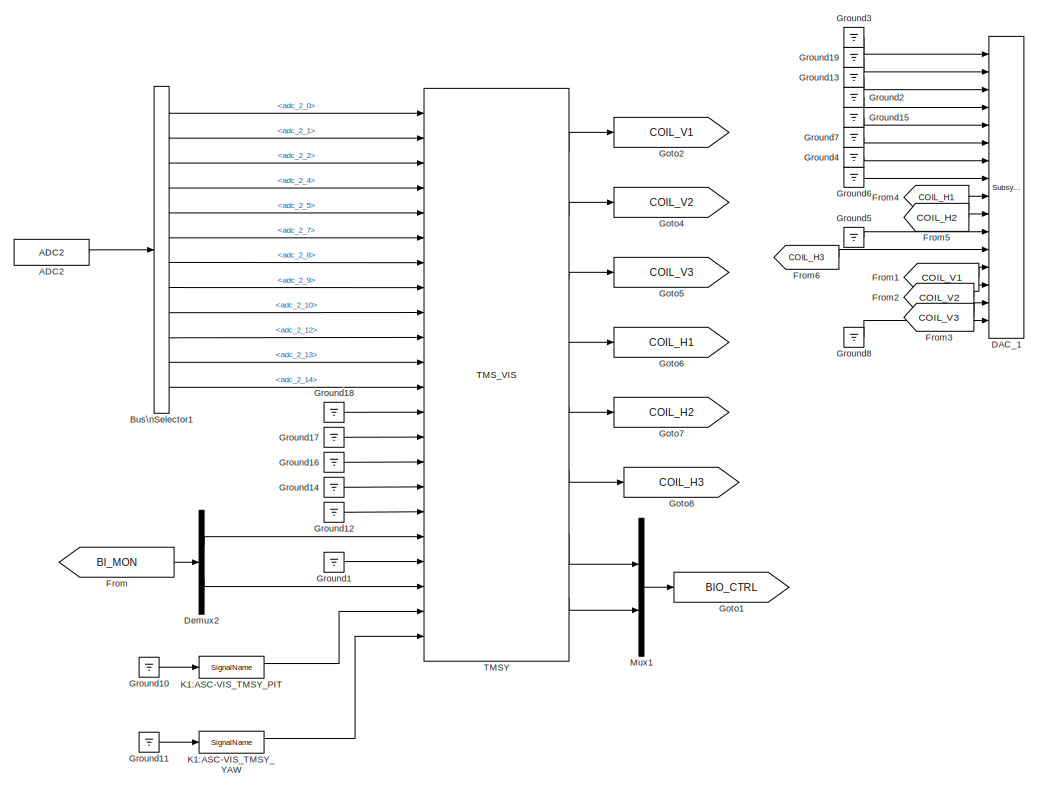
[diagram: root canvas - part 1/3, top center region]
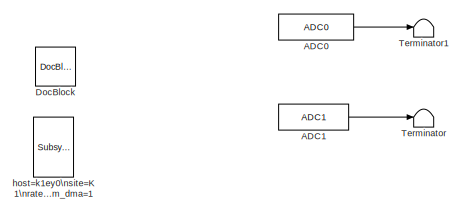
[diagram: root canvas - part 2/3, top left region]
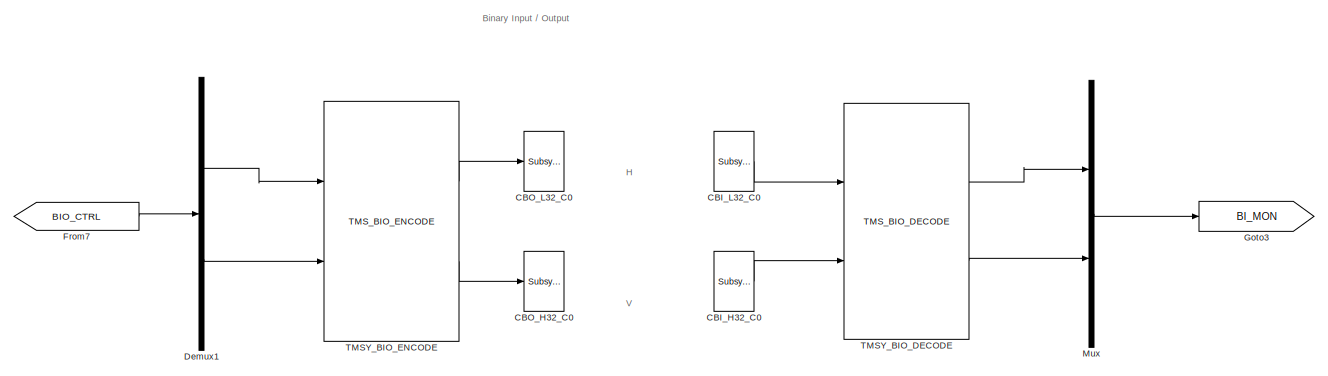
[diagram: root canvas - part 3/3, full width, bottom band]
MODEL k1vistmsy
KIND model
BLOCK [Reference] ADC0  REF=cdsAdcx0/ADC0
  AttributesFormatString = %<Description>\\n%<Tag>
  Description = type-GSC_16AI64SSA\ncard_num=0
  Ports = [0, 1]
  SID = 4164
  SourceBlock = cdsAdcx0/ADC0
  SourceType = SubSystem
  Tag = cdsAdc
BLOCK [Reference] ADC1  REF=cdsAdcx1/ADC1
  AttributesFormatString = %<Description>\\n%<Tag>
  Description = type-GSC_16AI64SSA\ncard_num=1
  Ports = [0, 1]
  SID = 4165
  SourceBlock = cdsAdcx1/ADC1
  SourceType = SubSystem
  Tag = cdsAdc
BLOCK [Reference] ADC2  REF=cdsAdcx2/ADC2
  AttributesFormatString = %<Description>\\n%<Tag>
  Description = type-GSC_16AI64SSA\ncard_num=2
  Ports = [0, 1]
  SID = 4117
  SourceBlock = cdsAdcx2/ADC2
  SourceType = SubSystem
  Tag = cdsAdc
BLOCK [BusSelector] Bus\nSelector1
  AttributesFormatString = %<Description>
  Description = ADC Selector
  OutputSignals = adc_2_0,adc_2_1,adc_2_2,adc_2_4,adc_2_5,adc_2_7,adc_2_8,adc_2_9,adc_2_10,adc_2_12,adc_2_13,adc_2_14
  Ports = [1, 12]
  SID = 1945
BLOCK [Reference] CBI_H32_C0  REF=cdsCDI64/Subsystem
  AttributesFormatString = %<Tag>\\n%<Description>
  Description = card_num=1
  Ports = [0, 1]
  SID = 3612
  SourceBlock = cdsCDI64/Subsystem
  SourceType = SubSystem
  Tag = cdsCDI64
BLOCK [Reference] CBI_L32_C0  REF=cdsCDI64/Subsystem
  AttributesFormatString = %<Tag>\\n%<Description>
  Description = card_num=0
  Ports = [0, 1]
  SID = 3615
  SourceBlock = cdsCDI64/Subsystem
  SourceType = SubSystem
  Tag = cdsCDI64
BLOCK [Reference] CBO_H32_C0  REF=cdsCDO64/Subsystem
  AttributesFormatString = %<Tag>\\n%<Description>
  Description = card_num=1
  Ports = [1]
  SID = 3619
  SourceBlock = cdsCDO64/Subsystem
  SourceType = SubSystem
  Tag = cdsCDO64
BLOCK [Reference] CBO_L32_C0  REF=cdsCDO64/Subsystem
  AttributesFormatString = %<Tag>\\n%<Description>
  Description = card_num=0
  Ports = [1]
  SID = 3622
  SourceBlock = cdsCDO64/Subsystem
  SourceType = SubSystem
  Tag = cdsCDO64
BLOCK [Reference] DAC_1  REF=dac/Subsystem  (lib defined in slx_40ef132df75b, slx_b7657ccccc5b, +4 more)
  AttributesFormatString = %<Description>
  Description = type=GSC_16AO16,\ncard_num=1
  Ports = [16]
  SID = 4168
  SourceBlock = dac/Subsystem
  SourceType = SubSystem
BLOCK [Demux] Demux1
  DisplayOption = bar
  Outputs = 2
  Ports = [1, 2]
  SID = 3626
BLOCK [Demux] Demux2
  DisplayOption = bar
  Outputs = 2
  Ports = [1, 2]
  SID = 4037
BLOCK [Reference] DocBlock  REF=simulink/Model-Wide\nUtilities/DocBlock
  DocumentType = Text
  Ports = []
  SID = 24
  SourceBlock = simulink/Model-Wide\nUtilities/DocBlock
  SourceType = DocBlock
  UserData = DataTag0
  UserDataPersistent = on
BLOCK [From] From
  GotoTag = BI_MON
  SID = 4034
BLOCK [From] From1
  GotoTag = COIL_V1
  SID = 4146
BLOCK [From] From2
  GotoTag = COIL_V2
  SID = 4153
BLOCK [From] From3
  GotoTag = COIL_V3
  SID = 4154
BLOCK [From] From4
  GotoTag = COIL_H1
  SID = 4155
BLOCK [From] From5
  GotoTag = COIL_H2
  SID = 4156
BLOCK [From] From6
  GotoTag = COIL_H3
  SID = 4157
BLOCK [From] From7
  GotoTag = BIO_CTRL
  SID = 3627
BLOCK [Goto] Goto1
  GotoTag = BIO_CTRL
  SID = 4039
BLOCK [Goto] Goto2
  GotoTag = COIL_V1
  SID = 4145
BLOCK [Goto] Goto3
  GotoTag = BI_MON
  SID = 3628
BLOCK [Goto] Goto4
  GotoTag = COIL_V2
  SID = 4147
BLOCK [Goto] Goto5
  GotoTag = COIL_V3
  SID = 4148
BLOCK [Goto] Goto6
  GotoTag = COIL_H1
  SID = 4149
BLOCK [Goto] Goto7
  GotoTag = COIL_H2
  SID = 4150
BLOCK [Goto] Goto8
  GotoTag = COIL_H3
  SID = 4151
BLOCK [Ground] Ground1
  SID = 4036
BLOCK [Ground] Ground10
  SID = 4139
BLOCK [Ground] Ground11
  SID = 4140
BLOCK [Ground] Ground12
  SID = 4035
BLOCK [Ground] Ground13
  SID = 4126
BLOCK [Ground] Ground14
  SID = 4141
BLOCK [Ground] Ground15
  SID = 4129
BLOCK [Ground] Ground16
  SID = 4142
BLOCK [Ground] Ground17
  SID = 4143
BLOCK [Ground] Ground18
  SID = 4144
BLOCK [Ground] Ground19
  SID = 4169
BLOCK [Ground] Ground2
  SID = 4041
BLOCK [Ground] Ground3
  SID = 4042
BLOCK [Ground] Ground4
  SID = 4158
BLOCK [Ground] Ground5
  SID = 4159
BLOCK [Ground] Ground6
  SID = 4160
BLOCK [Ground] Ground7
  SID = 4161
BLOCK [Ground] Ground8
  SID = 4162
BLOCK [Reference] K1:ASC-VIS_TMSY_PIT  REF=cdsIPCx/SignalName
  AttributesFormatString = %<Description>\\n%<Tag>
  Description = card=1
  Ports = [1, 2]
  SID = 4136
  SourceBlock = cdsIPCx/SignalName
  SourceType = SubSystem
  Tag = cdsIPCx_RFM
BLOCK [Reference] K1:ASC-VIS_TMSY_YAW  REF=cdsIPCx/SignalName
  AttributesFormatString = %<Description>\\n%<Tag>
  Description = card=1
  Ports = [1, 2]
  SID = 4137
  SourceBlock = cdsIPCx/SignalName
  SourceType = SubSystem
  Tag = cdsIPCx_RFM
BLOCK [Mux] Mux
  DisplayOption = bar
  Inputs = 2
  Ports = [2, 1]
  SID = 3629
BLOCK [Mux] Mux1
  DisplayOption = bar
  Inputs = 2
  Ports = [2, 1]
  SID = 4038
BLOCK [Reference] TMSY  REF=VIS_TMS_LIB/TMS_VIS
  Ports = [22, 8]
  SID = 4114
  SourceBlock = VIS_TMS_LIB/TMS_VIS
  SourceType = SubSystem
BLOCK [Reference] TMSY_BIO_DECODE  REF=VIS_TMS_LIB/TMS_BIO_DECODE
  Ports = [2, 2]
  SID = 4116
  SourceBlock = VIS_TMS_LIB/TMS_BIO_DECODE
  SourceType = SubSystem
BLOCK [Reference] TMSY_BIO_ENCODE  REF=VIS_TMS_LIB/TMS_BIO_ENCODE
  Ports = [2, 2]
  SID = 4115
  SourceBlock = VIS_TMS_LIB/TMS_BIO_ENCODE
  SourceType = SubSystem
BLOCK [Terminator] Terminator
  SID = 4166
BLOCK [Terminator] Terminator1
  SID = 4167
BLOCK [Reference] host=k1ey0\nsite=K1\nrate=2K\ndcuid=122\nspecific_cpu=3\nadcSlave=1\nno_rfm_dma=1  REF=cdsParameters/Subsystem
  AttributesFormatString = %<Tag>
  Description = \n                                                                                                                                                                                                                                        \nPurpose:                                                                                                                                                            ...<+4106ch>
  Ports = []
  SID = 1944
  SourceBlock = cdsParameters/Subsystem
  SourceType = SubSystem
  Tag = cdsParameters
ANNOTATION (root): \n \n H
ANNOTATION (root): \n \n V
ANNOTATION (root): Binary Input / Output
LINE ADC0:1 -> Terminator1:1
LINE ADC1:1 -> Terminator:1
LINE ADC2:1 -> Bus\nSelector1:1
LINE Bus\nSelector1:1 -> TMSY:1
LINE Bus\nSelector1:10 -> TMSY:10
LINE Bus\nSelector1:11 -> TMSY:11
LINE Bus\nSelector1:12 -> TMSY:12
LINE Bus\nSelector1:2 -> TMSY:2
LINE Bus\nSelector1:3 -> TMSY:3
LINE Bus\nSelector1:4 -> TMSY:4
LINE Bus\nSelector1:5 -> TMSY:5
LINE Bus\nSelector1:6 -> TMSY:6
LINE Bus\nSelector1:7 -> TMSY:7
LINE Bus\nSelector1:8 -> TMSY:8
LINE Bus\nSelector1:9 -> TMSY:9
LINE CBI_H32_C0:1 -> TMSY_BIO_DECODE:2
LINE CBI_L32_C0:1 -> TMSY_BIO_DECODE:1
LINE Demux1:1 -> TMSY_BIO_ENCODE:1
LINE Demux1:2 -> TMSY_BIO_ENCODE:2
LINE Demux2:1 -> TMSY:18
LINE Demux2:2 -> TMSY:20
LINE From1:1 -> DAC_1:13
LINE From2:1 -> DAC_1:14
LINE From3:1 -> DAC_1:15
LINE From4:1 -> DAC_1:9
LINE From5:1 -> DAC_1:10
LINE From6:1 -> DAC_1:12
LINE From7:1 -> Demux1:1
LINE From:1 -> Demux2:1
LINE Ground10:1 -> K1:ASC-VIS_TMSY_PIT:1
LINE Ground11:1 -> K1:ASC-VIS_TMSY_YAW:1
LINE Ground12:1 -> TMSY:17
LINE Ground13:1 -> DAC_1:3
LINE Ground14:1 -> TMSY:16
LINE Ground15:1 -> DAC_1:5
LINE Ground16:1 -> TMSY:15
LINE Ground17:1 -> TMSY:14
LINE Ground18:1 -> TMSY:13
LINE Ground19:1 -> DAC_1:2
LINE Ground1:1 -> TMSY:19
LINE Ground2:1 -> DAC_1:4
LINE Ground3:1 -> DAC_1:1
LINE Ground4:1 -> DAC_1:7
LINE Ground5:1 -> DAC_1:11
LINE Ground6:1 -> DAC_1:8
LINE Ground7:1 -> DAC_1:6
LINE Ground8:1 -> DAC_1:16
LINE K1:ASC-VIS_TMSY_PIT:1 -> TMSY:21
LINE K1:ASC-VIS_TMSY_YAW:1 -> TMSY:22
LINE Mux1:1 -> Goto1:1
LINE Mux:1 -> Goto3:1
LINE TMSY:1 -> Goto2:1
LINE TMSY:2 -> Goto4:1
LINE TMSY:3 -> Goto5:1
LINE TMSY:4 -> Goto6:1
LINE TMSY:5 -> Goto7:1
LINE TMSY:6 -> Goto8:1
LINE TMSY:7 -> Mux1:1
LINE TMSY:8 -> Mux1:2
LINE TMSY_BIO_DECODE:1 -> Mux:1
LINE TMSY_BIO_DECODE:2 -> Mux:2
LINE TMSY_BIO_ENCODE:1 -> CBO_L32_C0:1
LINE TMSY_BIO_ENCODE:2 -> CBO_H32_C0:1
